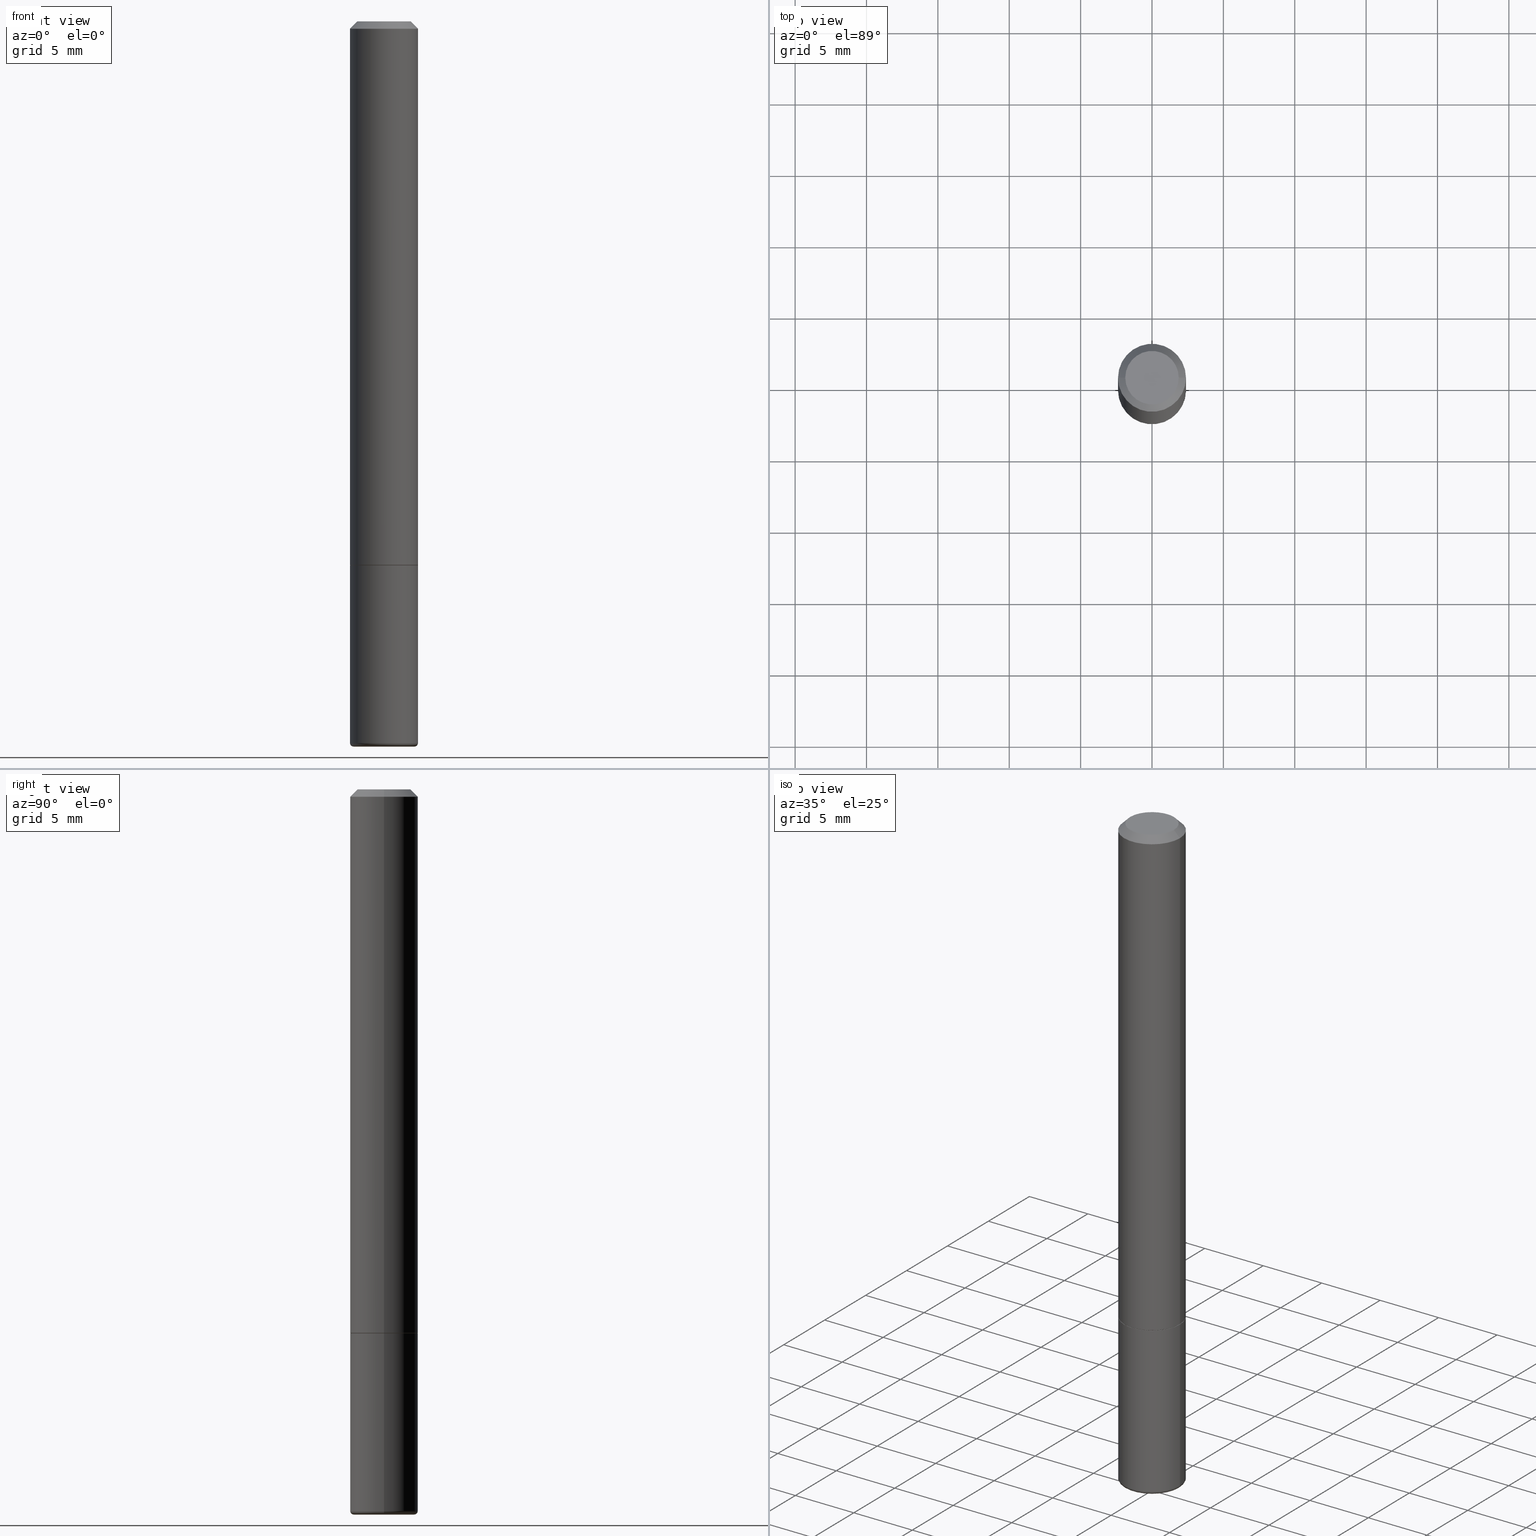
[diagram: canonical four-view strip — front | top / right | iso, engineering-drawing reading convention]
A machine part, canonical four-view strip (front | top / right | iso — engineering-drawing reading convention). The complete STEP part file that produces these views, byte-faithful:
ISO-10303-21;
HEADER;
FILE_DESCRIPTION (( 'STEP AP203' ),
    '1' );
FILE_NAME ('38783.STEP',
    '2024-03-03T12:35:34',
    ( '' ),
    ( '' ),
    'SwSTEP 2.0',
    'SolidWorks 2023',
    '' );
FILE_SCHEMA (( 'CONFIG_CONTROL_DESIGN' ));
ENDSEC;

DATA;
#1 = LENGTH_MEASURE_WITH_UNIT ( LENGTH_MEASURE( 0.02539999999999999897 ), #284 );
#2 = CONICAL_SURFACE ( 'NONE', #324, 0.09274999999999998523, 0.7853981633975251064 ) ;
#3 = ORIENTED_EDGE ( 'NONE', *, *, #60, .F. ) ;
#4 = CARTESIAN_POINT ( 'NONE',  ( -0.09274999999999998523, -4.578193620847224472E-15, -1.499999999999999778 ) ) ;
#5 = CARTESIAN_POINT ( 'NONE',  ( -0.09274999999999998523, -4.572895166499002070E-15, -1.499999999999999778 ) ) ;
#6 = ORIENTED_EDGE ( 'NONE', *, *, #404, .F. ) ;
#7 = FACE_OUTER_BOUND ( 'NONE', #225, .T. ) ;
#8 = ORIENTED_EDGE ( 'NONE', *, *, #279, .T. ) ;
#9 = FACE_OUTER_BOUND ( 'NONE', #157, .T. ) ;
#10 = AXIS2_PLACEMENT_3D ( 'NONE', #332, #296, #15 ) ;
#11 = DIRECTION ( 'NONE',  ( 1.000000000000000000, -6.982962677686262766E-15, 0.000000000000000000 ) ) ;
#12 = EDGE_CURVE ( 'NONE', #29, #66, #264, .T. ) ;
#13 = MANIFOLD_SOLID_BREP ( 'Body-Move/Copy2[1]', #26 ) ;
#14 = DIRECTION ( 'NONE',  ( -1.000000000000000000, 6.982962677686265922E-15, -4.876176775795935793E-29 ) ) ;
#15 = DIRECTION ( 'NONE',  ( 1.000000000000000000, -6.982962677686274599E-15, 0.000000000000000000 ) ) ;
#16 = ADVANCED_FACE ( 'NONE', ( #403 ), #97, .T. ) ;
#17 = ORIENTED_EDGE ( 'NONE', *, *, #369, .F. ) ;
#18 = DIRECTION ( 'NONE',  ( -2.445468806185136597E-29, 3.491481338843145583E-15, 1.000000000000000000 ) ) ;
#19 = EDGE_CURVE ( 'NONE', #102, #131, #335, .T. ) ;
#20 = ORIENTED_EDGE ( 'NONE', *, *, #260, .F. ) ;
#21 = CIRCLE ( 'NONE', #346, 0.09375000000000001388 ) ;
#22 = LINE ( 'NONE', #276, #388 ) ;
#23 = CARTESIAN_POINT ( 'NONE',  ( 0.09374999999999998612, -7.602700615330948598E-15, -1.989999999999999991 ) ) ;
#24 = MECHANICAL_CONTEXT ( 'NONE', #344, 'mechanical' ) ;
#25 = CARTESIAN_POINT ( 'NONE',  ( 0.09375000000000001388, -7.130013140679441850E-16, -0.02000000000000001776 ) ) ;
#26 = CLOSED_SHELL ( 'NONE', ( #88, #182, #82, #52, #16, #140 ) ) ;
#27 = AXIS2_PLACEMENT_3D ( 'NONE', #397, #401, #44 ) ;
#28 = CALENDAR_DATE ( 2024, 3, 3 ) ;
#29 = VERTEX_POINT ( 'NONE', #204 ) ;
#30 = EDGE_LOOP ( 'NONE', ( #68, #195 ) ) ;
#31 =( NAMED_UNIT ( * ) SI_UNIT ( $, .STERADIAN. ) SOLID_ANGLE_UNIT ( ) );
#32 = ORIENTED_EDGE ( 'NONE', *, *, #159, .T. ) ;
#33 = PERSON_AND_ORGANIZATION ( #133, #251 ) ;
#34 = DIRECTION ( 'NONE',  ( 1.000000000000000000, -6.982962677686262766E-15, 0.000000000000000000 ) ) ;
#35 = ORIENTED_EDGE ( 'NONE', *, *, #48, .T. ) ;
#36 = EDGE_CURVE ( 'NONE', #29, #216, #399, .T. ) ;
#37 = CARTESIAN_POINT ( 'NONE',  ( 3.668203209277704335E-29, -5.237222008264717388E-15, -1.499999999999999778 ) ) ;
#38 = ORIENTED_EDGE ( 'NONE', *, *, #12, .T. ) ;
#39 = APPROVAL_STATUS ( 'not_yet_approved' ) ;
#40 = EDGE_CURVE ( 'NONE', #131, #167, #176, .T. ) ;
#41 = CARTESIAN_POINT ( 'NONE',  ( 3.665757740471518732E-29, -5.233730526925875170E-15, -1.498999999999999666 ) ) ;
#42 = DIRECTION ( 'NONE',  ( 1.000000000000000000, -6.982962677686265922E-15, 0.000000000000000000 ) ) ;
#43 = AXIS2_PLACEMENT_3D ( 'NONE', #143, #145, #384 ) ;
#44 = DIRECTION ( 'NONE',  ( 1.000000000000000000, -6.982962677686265922E-15, 4.876176775795935793E-29 ) ) ;
#45 = CARTESIAN_POINT ( 'NONE',  ( 3.668203209277704335E-29, -5.237222008264717388E-15, -1.499999999999999778 ) ) ;
#46 = DIRECTION ( 'NONE',  ( -2.445468806185136597E-29, 3.491481338843145583E-15, 1.000000000000000000 ) ) ;
#47 = AXIS2_PLACEMENT_3D ( 'NONE', #87, #382, #181 ) ;
#48 = EDGE_CURVE ( 'NONE', #290, #316, #407, .T. ) ;
#49 = PLANE ( 'NONE',  #163 ) ;
#50 = DIRECTION ( 'NONE',  ( 1.000000000000000000, -6.982962677686262766E-15, 0.000000000000000000 ) ) ;
#51 = CARTESIAN_POINT ( 'NONE',  ( 3.668203209277704335E-29, -5.237222008264717388E-15, -1.499999999999999778 ) ) ;
#52 = ADVANCED_FACE ( 'NONE', ( #375 ), #76, .T. ) ;
#53 = CARTESIAN_POINT ( 'NONE',  ( 4.890937612370276662E-31, -6.982962677686296539E-17, -0.02000000000000001776 ) ) ;
#54 = ORIENTED_EDGE ( 'NONE', *, *, #369, .T. ) ;
#55 = DIRECTION ( 'NONE',  ( 7.105427357601001859E-15, 1.000000000000000000, -3.491481338843145583E-15 ) ) ;
#56 = FACE_OUTER_BOUND ( 'NONE', #368, .T. ) ;
#57 = ADVANCED_FACE ( 'NONE', ( #396 ), #377, .T. ) ;
#58 = CIRCLE ( 'NONE', #349, 0.09375000000000002776 ) ;
#59 = UNCERTAINTY_MEASURE_WITH_UNIT (LENGTH_MEASURE( 1.000000000000000082E-05 ), #162, 'distance_accuracy_value', 'NONE');
#60 = EDGE_CURVE ( 'NONE', #361, #290, #77, .T. ) ;
#61 = AXIS2_PLACEMENT_3D ( 'NONE', #306, #212, #341 ) ;
#62 = PRODUCT_DEFINITION_FORMATION_WITH_SPECIFIED_SOURCE ( 'ANY', '', #153, .NOT_KNOWN. ) ;
#63 = CARTESIAN_POINT ( 'NONE',  ( -0.09375000000000001388, -5.426501121506194922E-15, -1.499999999999999778 ) ) ;
#64 = EDGE_LOOP ( 'NONE', ( #354, #288, #38, #190 ) ) ;
#65 = CARTESIAN_POINT ( 'NONE',  ( 3.668203209277704335E-29, -5.237222008264717388E-15, -1.499999999999999778 ) ) ;
#66 = VERTEX_POINT ( 'NONE', #173 ) ;
#67 = CC_DESIGN_DATE_AND_TIME_ASSIGNMENT ( #398, #109, ( #408 ) ) ;
#68 = ORIENTED_EDGE ( 'NONE', *, *, #159, .F. ) ;
#69 = CALENDAR_DATE ( 2024, 3, 3 ) ;
#70 = CIRCLE ( 'NONE', #229, 0.09375000000000020817 ) ;
#71 = ORIENTED_EDGE ( 'NONE', *, *, #406, .T. ) ;
#72 = SHAPE_DEFINITION_REPRESENTATION ( #103, #410 ) ;
#73 = ORIENTED_EDGE ( 'NONE', *, *, #138, .T. ) ;
#74 = DIRECTION ( 'NONE',  ( 1.000000000000000000, -6.982962677686265922E-15, 4.876176775795935793E-29 ) ) ;
#75 = PERSON_AND_ORGANIZATION ( #133, #251 ) ;
#76 = CYLINDRICAL_SURFACE ( 'NONE', #365, 0.09375000000000002776 ) ;
#77 = CIRCLE ( 'NONE', #219, 0.08375000000000000500 ) ;
#78 = CIRCLE ( 'NONE', #389, 0.009999999999999944697 ) ;
#79 = CARTESIAN_POINT ( 'NONE',  ( 3.668203209277704335E-29, -5.237222008264717388E-15, -1.499999999999999778 ) ) ;
#80 = EDGE_CURVE ( 'NONE', #282, #131, #70, .T. ) ;
#81 = CARTESIAN_POINT ( 'NONE',  ( 0.000000000000000000, 0.000000000000000000, 0.000000000000000000 ) ) ;
#82 = ADVANCED_FACE ( 'NONE', ( #9 ), #136, .F. ) ;
#83 = FACE_OUTER_BOUND ( 'NONE', #30, .T. ) ;
#84 = CYLINDRICAL_SURFACE ( 'NONE', #43, 0.09375000000000011102 ) ;
#85 = APPROVAL_PERSON_ORGANIZATION ( #75, #385, #258 ) ;
#86 = DIRECTION ( 'NONE',  ( -1.000000000000000000, 6.982962677686265922E-15, 0.000000000000000000 ) ) ;
#87 = CARTESIAN_POINT ( 'NONE',  ( 4.890937612370273194E-29, -6.982962677686291165E-15, -2.000000000000000000 ) ) ;
#88 = ADVANCED_FACE ( 'NONE', ( #297 ), #203, .T. ) ;
#89 = LINE ( 'NONE', #4, #315 ) ;
#90 = CIRCLE ( 'NONE', #111, 0.09375000000000001388 ) ;
#91 = LOCAL_TIME ( 7, 35, 34.00000000000000000, #215 ) ;
#92 = DATE_AND_TIME ( #275, #170 ) ;
#93 = EDGE_CURVE ( 'NONE', #316, #100, #199, .T. ) ;
#94 = PERSON_AND_ORGANIZATION_ROLE ( 'creator' ) ;
#95 = ORIENTED_EDGE ( 'NONE', *, *, #93, .F. ) ;
#96 = ADVANCED_FACE ( 'NONE', ( #171 ), #293, .T. ) ;
#97 = TOROIDAL_SURFACE ( 'NONE', #179, 0.08375000000000000500, 0.009999999999999953371 ) ;
#98 = DATE_TIME_ROLE ( 'creation_date' ) ;
#99 = ORIENTED_EDGE ( 'NONE', *, *, #119, .F. ) ;
#100 = VERTEX_POINT ( 'NONE', #137 ) ;
#101 = APPROVAL_ROLE ( '' ) ;
#102 = VERTEX_POINT ( 'NONE', #261 ) ;
#103 = PRODUCT_DEFINITION_SHAPE ( 'NONE', 'NONE',  #311 ) ;
#104 = VECTOR ( 'NONE', #271, 39.37007874015748143 ) ;
#105 = EDGE_LOOP ( 'NONE', ( #327, #409, #127, #124 ) ) ;
#106 = CARTESIAN_POINT ( 'NONE',  ( 0.000000000000000000, 0.000000000000000000, 0.000000000000000000 ) ) ;
#107 = APPLICATION_CONTEXT ( 'configuration controlled 3d designs of mechanical parts and assemblies' ) ;
#108 = FACE_OUTER_BOUND ( 'NONE', #255, .T. ) ;
#109 = DATE_TIME_ROLE ( 'classification_date' ) ;
#110 = CIRCLE ( 'NONE', #134, 0.09375000000000020817 ) ;
#111 = AXIS2_PLACEMENT_3D ( 'NONE', #53, #303, #360 ) ;
#112 = CC_DESIGN_PERSON_AND_ORGANIZATION_ASSIGNMENT ( #193, #247, ( #311 ) ) ;
#113 = DIRECTION ( 'NONE',  ( -2.445468806185136597E-29, 3.491481338843145583E-15, 1.000000000000000000 ) ) ;
#114 = DIRECTION ( 'NONE',  ( 1.000000000000000000, -6.982962677686265922E-15, 4.876176775795935793E-29 ) ) ;
#115 = ADVANCED_FACE ( 'NONE', ( #108 ), #84, .T. ) ;
#116 = CARTESIAN_POINT ( 'NONE',  ( 5.219257071676098903E-46, -7.451715851902235727E-32, -2.134256245050205639E-17 ) ) ;
#117 = DIRECTION ( 'NONE',  ( 1.000000000000000000, -6.982962677686265922E-15, 4.883557194083112901E-29 ) ) ;
#118 = AXIS2_PLACEMENT_3D ( 'NONE', #37, #289, #415 ) ;
#119 = EDGE_CURVE ( 'NONE', #290, #361, #239, .T. ) ;
#120 = CARTESIAN_POINT ( 'NONE',  ( 4.890937612370273194E-29, -6.982962677686291165E-15, -2.000000000000000000 ) ) ;
#121 = DIRECTION ( 'NONE',  ( -2.445468806185136877E-29, 3.491481338843145188E-15, 1.000000000000000000 ) ) ;
#122 = PLANE ( 'NONE',  #155 ) ;
#123 = PERSON_AND_ORGANIZATION ( #133, #251 ) ;
#124 = ORIENTED_EDGE ( 'NONE', *, *, #12, .F. ) ;
#125 = PERSON_AND_ORGANIZATION ( #133, #251 ) ;
#126 = FACE_OUTER_BOUND ( 'NONE', #105, .T. ) ;
#127 = ORIENTED_EDGE ( 'NONE', *, *, #198, .T. ) ;
#128 = AXIS2_PLACEMENT_3D ( 'NONE', #308, #18, #117 ) ;
#129 = CC_DESIGN_APPROVAL ( #385, ( #408 ) ) ;
#130 = ORIENTED_EDGE ( 'NONE', *, *, #172, .F. ) ;
#131 = VERTEX_POINT ( 'NONE', #183 ) ;
#132 = ORIENTED_EDGE ( 'NONE', *, *, #80, .T. ) ;
#133 = PERSON ( 'UNSPECIFIED', 'UNSPECIFIED', 'UNSPECIFIED', ('UNSPECIFIED'), ('UNSPECIFIED'), ('UNSPECIFIED') ) ;
#134 = AXIS2_PLACEMENT_3D ( 'NONE', #205, #338, #208 ) ;
#135 = EDGE_CURVE ( 'NONE', #216, #167, #150, .T. ) ;
#136 = PLANE ( 'NONE',  #331 ) ;
#137 = CARTESIAN_POINT ( 'NONE',  ( 0.09375000000000001388, -5.891874759297804892E-15, -1.499999999999999778 ) ) ;
#138 = EDGE_CURVE ( 'NONE', #310, #316, #146, .T. ) ;
#139 = DIRECTION ( 'NONE',  ( 1.000000000000000000, -6.982962677686265922E-15, 4.883557194083112901E-29 ) ) ;
#140 = ADVANCED_FACE ( 'NONE', ( #148 ), #122, .T. ) ;
#141 = CARTESIAN_POINT ( 'NONE',  ( 0.09375000000000002776, -6.546527510330876027E-16, 4.571415727308691207E-30 ) ) ;
#142 = DIRECTION ( 'NONE',  ( 0.7071067811866017516, -2.468850131082825040E-15, 0.7071067811864931718 ) ) ;
#143 = CARTESIAN_POINT ( 'NONE',  ( 0.000000000000000000, 0.000000000000000000, 0.000000000000000000 ) ) ;
#144 = APPROVAL ( #412, 'UNSPECIFIED' ) ;
#145 = DIRECTION ( 'NONE',  ( -2.445468806185136597E-29, 3.491481338843145583E-15, 1.000000000000000000 ) ) ;
#146 = CIRCLE ( 'NONE', #270, 0.09375000000000002776 ) ;
#147 = CIRCLE ( 'NONE', #353, 0.09274999999999998523 ) ;
#148 = FACE_OUTER_BOUND ( 'NONE', #165, .T. ) ;
#149 = DIRECTION ( 'NONE',  ( 1.000000000000000000, -6.982962677686270655E-15, 0.000000000000000000 ) ) ;
#150 = LINE ( 'NONE', #411, #104 ) ;
#151 = COORDINATED_UNIVERSAL_TIME_OFFSET ( 5, 0, .BEHIND. ) ;
#152 = CARTESIAN_POINT ( 'NONE',  ( 3.668203209277704335E-29, -5.237222008264717388E-15, -1.499999999999999778 ) ) ;
#153 = PRODUCT ( '38783', '38783', '', ( #24 ) ) ;
#154 = ORIENTED_EDGE ( 'NONE', *, *, #318, .T. ) ;
#155 = AXIS2_PLACEMENT_3D ( 'NONE', #120, #210, #268 ) ;
#156 = DATE_AND_TIME ( #28, #91 ) ;
#157 = EDGE_LOOP ( 'NONE', ( #236, #154 ) ) ;
#158 = DIRECTION ( 'NONE',  ( 1.000000000000000000, 0.000000000000000000, 0.000000000000000000 ) ) ;
#159 = EDGE_CURVE ( 'NONE', #102, #222, #257, .T. ) ;
#160 = ORIENTED_EDGE ( 'NONE', *, *, #60, .T. ) ;
#161 = VECTOR ( 'NONE', #330, 39.37007874015748143 ) ;
#162 =( CONVERSION_BASED_UNIT ( 'INCH', #1 ) LENGTH_UNIT ( ) NAMED_UNIT ( #362 ) );
#163 = AXIS2_PLACEMENT_3D ( 'NONE', #51, #177, #405 ) ;
#164 = CARTESIAN_POINT ( 'NONE',  ( 0.07375000000000006550, -6.094815207017975989E-16, -2.134256245049812442E-17 ) ) ;
#165 = EDGE_LOOP ( 'NONE', ( #99, #3 ) ) ;
#166 = ORIENTED_EDGE ( 'NONE', *, *, #48, .F. ) ;
#167 = VERTEX_POINT ( 'NONE', #25 ) ;
#168 = COORDINATED_UNIVERSAL_TIME_OFFSET ( 5, 0, .BEHIND. ) ;
#169 = AXIS2_PLACEMENT_3D ( 'NONE', #248, #191, #86 ) ;
#170 = LOCAL_TIME ( 7, 35, 34.00000000000000000, #151 ) ;
#171 = FACE_OUTER_BOUND ( 'NONE', #350, .T. ) ;
#172 = EDGE_CURVE ( 'NONE', #282, #66, #22, .T. ) ;
#173 = CARTESIAN_POINT ( 'NONE',  ( -0.09375000000000001388, 5.848231242562245017E-16, -0.02000000000000001776 ) ) ;
#174 = CARTESIAN_POINT ( 'NONE',  ( 0.09274999999999998523, -5.884891796620118089E-15, -1.499999999999999778 ) ) ;
#175 = CIRCLE ( 'NONE', #348, 0.09375000000000001388 ) ;
#176 = LINE ( 'NONE', #298, #187 ) ;
#177 = DIRECTION ( 'NONE',  ( -2.438088387897960049E-29, 3.491481338843145188E-15, 1.000000000000000000 ) ) ;
#178 = DIRECTION ( 'NONE',  ( -2.445468806185136597E-29, 3.491481338843145583E-15, 1.000000000000000000 ) ) ;
#179 = AXIS2_PLACEMENT_3D ( 'NONE', #234, #259, #139 ) ;
#180 = LOCAL_TIME ( 7, 35, 34.00000000000000000, #230 ) ;
#181 = DIRECTION ( 'NONE',  ( 1.000000000000000000, -6.982962677686265922E-15, 0.000000000000000000 ) ) ;
#182 = ADVANCED_FACE ( 'NONE', ( #379 ), #299, .T. ) ;
#183 = CARTESIAN_POINT ( 'NONE',  ( 0.09375000000000020817, -5.888383277958964251E-15, -1.498999999999999666 ) ) ;
#184 = ORIENTED_EDGE ( 'NONE', *, *, #119, .T. ) ;
#185 = PERSON_AND_ORGANIZATION_ROLE ( 'design_owner' ) ;
#186 = CARTESIAN_POINT ( 'NONE',  ( 4.890937612370276662E-31, -6.982962677686296539E-17, -0.02000000000000001776 ) ) ;
#187 = VECTOR ( 'NONE', #266, 39.37007874015748143 ) ;
#188 =( NAMED_UNIT ( * ) PLANE_ANGLE_UNIT ( ) SI_UNIT ( $, .RADIAN. ) );
#189 = PRODUCT_RELATED_PRODUCT_CATEGORY ( 'detail', '', ( #153 ) ) ;
#190 = ORIENTED_EDGE ( 'NONE', *, *, #224, .T. ) ;
#191 = DIRECTION ( 'NONE',  ( 2.445468806185136597E-29, -3.491481338843145583E-15, -1.000000000000000000 ) ) ;
#192 = ORIENTED_EDGE ( 'NONE', *, *, #138, .F. ) ;
#193 = PERSON_AND_ORGANIZATION ( #133, #251 ) ;
#194 = DIRECTION ( 'NONE',  ( 1.000000000000000000, -6.982962677686265922E-15, 0.000000000000000000 ) ) ;
#195 = ORIENTED_EDGE ( 'NONE', *, *, #406, .F. ) ;
#196 = ADVANCED_FACE ( 'NONE', ( #56 ), #242, .F. ) ;
#197 = CARTESIAN_POINT ( 'NONE',  ( 4.890937612370273194E-29, -6.982962677686291165E-15, -2.000000000000000000 ) ) ;
#198 = EDGE_CURVE ( 'NONE', #167, #66, #90, .T. ) ;
#199 = LINE ( 'NONE', #141, #161 ) ;
#200 = CALENDAR_DATE ( 2024, 3, 3 ) ;
#201 = AXIS2_PLACEMENT_3D ( 'NONE', #235, #46, #202 ) ;
#202 = DIRECTION ( 'NONE',  ( 1.000000000000000000, -6.982962677686265922E-15, 4.878439923190939118E-29 ) ) ;
#203 = CYLINDRICAL_SURFACE ( 'NONE', #337, 0.09375000000000002776 ) ;
#204 = CARTESIAN_POINT ( 'NONE',  ( -0.07375000000000006550, 5.499083108677936415E-16, -2.134256245050577883E-17 ) ) ;
#205 = CARTESIAN_POINT ( 'NONE',  ( 3.665757740471518732E-29, -5.233730526925875170E-15, -1.498999999999999666 ) ) ;
#206 = LOCAL_TIME ( 7, 35, 34.00000000000000000, #312 ) ;
#207 = CC_DESIGN_PERSON_AND_ORGANIZATION_ASSIGNMENT ( #125, #185, ( #153 ) ) ;
#208 = DIRECTION ( 'NONE',  ( 1.000000000000000000, -6.982962677686268288E-15, 0.000000000000000000 ) ) ;
#209 = CARTESIAN_POINT ( 'NONE',  ( 3.668203209277704335E-29, -5.237222008264717388E-15, -1.499999999999999778 ) ) ;
#210 = DIRECTION ( 'NONE',  ( 2.438088387897960049E-29, -3.491481338843145188E-15, -1.000000000000000000 ) ) ;
#211 = DIRECTION ( 'NONE',  ( 1.000000000000000000, -6.982962677686261189E-15, 0.000000000000000000 ) ) ;
#212 = DIRECTION ( 'NONE',  ( 2.438088387897960049E-29, -3.491481338843145188E-15, -1.000000000000000000 ) ) ;
#213 = ADVANCED_FACE ( 'NONE', ( #7 ), #2, .T. ) ;
#214 = CONICAL_SURFACE ( 'NONE', #169, 0.09375000000000001388, 0.7853981633974469467 ) ;
#215 = COORDINATED_UNIVERSAL_TIME_OFFSET ( 5, 0, .BEHIND. ) ;
#216 = VERTEX_POINT ( 'NONE', #164 ) ;
#217 = PERSON_AND_ORGANIZATION_ROLE ( 'design_supplier' ) ;
#218 = ORIENTED_EDGE ( 'NONE', *, *, #40, .F. ) ;
#219 = AXIS2_PLACEMENT_3D ( 'NONE', #197, #328, #42 ) ;
#220 =( GEOMETRIC_REPRESENTATION_CONTEXT ( 3 ) GLOBAL_UNCERTAINTY_ASSIGNED_CONTEXT ( ( #59 ) ) GLOBAL_UNIT_ASSIGNED_CONTEXT ( ( #162, #188, #31 ) ) REPRESENTATION_CONTEXT ( 'NONE', 'WORKASPACE' ) );
#221 = PERSON_AND_ORGANIZATION ( #133, #251 ) ;
#222 = VERTEX_POINT ( 'NONE', #5 ) ;
#223 = DIRECTION ( 'NONE',  ( 0.000000000000000000, 0.000000000000000000, 1.000000000000000000 ) ) ;
#224 = EDGE_CURVE ( 'NONE', #66, #167, #175, .T. ) ;
#225 = EDGE_LOOP ( 'NONE', ( #32, #342, #304, #390 ) ) ;
#226 = APPLICATION_PROTOCOL_DEFINITION ( 'international standard', 'config_control_design', 1994, #344 ) ;
#227 = CC_DESIGN_DATE_AND_TIME_ASSIGNMENT ( #92, #98, ( #311 ) ) ;
#228 = ORIENTED_EDGE ( 'NONE', *, *, #356, .T. ) ;
#229 = AXIS2_PLACEMENT_3D ( 'NONE', #41, #292, #374 ) ;
#230 = COORDINATED_UNIVERSAL_TIME_OFFSET ( 5, 0, .BEHIND. ) ;
#231 = EDGE_LOOP ( 'NONE', ( #130, #132, #285, #249 ) ) ;
#232 = CALENDAR_DATE ( 2024, 3, 3 ) ;
#233 = DIRECTION ( 'NONE',  ( -2.445468806185136597E-29, 3.491481338843145583E-15, 1.000000000000000000 ) ) ;
#234 = CARTESIAN_POINT ( 'NONE',  ( 4.866482924308422209E-29, -6.948047864297860305E-15, -1.989999999999999991 ) ) ;
#235 = CARTESIAN_POINT ( 'NONE',  ( 5.219257071676098903E-46, -7.451715851902235727E-32, -2.134256245050205639E-17 ) ) ;
#236 = ORIENTED_EDGE ( 'NONE', *, *, #260, .T. ) ;
#237 = CARTESIAN_POINT ( 'NONE',  ( -0.08375000000000000500, -6.334898593004988035E-15, -2.000000000000000000 ) ) ;
#238 = CC_DESIGN_PERSON_AND_ORGANIZATION_ASSIGNMENT ( #414, #94, ( #62 ) ) ;
#239 = CIRCLE ( 'NONE', #47, 0.08375000000000000500 ) ;
#240 = APPROVAL_PERSON_ORGANIZATION ( #221, #144, #243 ) ;
#241 = ORIENTED_EDGE ( 'NONE', *, *, #394, .T. ) ;
#242 = PLANE ( 'NONE',  #61 ) ;
#243 = APPROVAL_ROLE ( '' ) ;
#244 = ADVANCED_FACE ( 'NONE', ( #326 ), #383, .T. ) ;
#245 = ORIENTED_EDGE ( 'NONE', *, *, #19, .T. ) ;
#246 = CC_DESIGN_PERSON_AND_ORGANIZATION_ASSIGNMENT ( #333, #295, ( #408 ) ) ;
#247 = PERSON_AND_ORGANIZATION_ROLE ( 'creator' ) ;
#248 = CARTESIAN_POINT ( 'NONE',  ( 4.890937612370276662E-31, -6.982962677686296539E-17, -0.02000000000000001776 ) ) ;
#249 = ORIENTED_EDGE ( 'NONE', *, *, #224, .F. ) ;
#250 = AXIS2_PLACEMENT_3D ( 'NONE', #186, #313, #417 ) ;
#251 = ORGANIZATION ( 'UNSPECIFIED', 'UNSPECIFIED', '' ) ;
#252 = VERTEX_POINT ( 'NONE', #63 ) ;
#253 = DIRECTION ( 'NONE',  ( 1.000000000000000000, -6.982962677686262766E-15, 0.000000000000000000 ) ) ;
#254 = EDGE_LOOP ( 'NONE', ( #228, #8, #20, #95 ) ) ;
#255 = EDGE_LOOP ( 'NONE', ( #364, #280, #321, #218 ) ) ;
#256 = VECTOR ( 'NONE', #371, 39.37007874015748143 ) ;
#257 = CIRCLE ( 'NONE', #352, 0.09274999999999998523 ) ;
#258 = APPROVAL_ROLE ( '' ) ;
#259 = DIRECTION ( 'NONE',  ( -2.445468806185136597E-29, 3.491481338843145583E-15, 1.000000000000000000 ) ) ;
#260 = EDGE_CURVE ( 'NONE', #100, #252, #372, .T. ) ;
#261 = CARTESIAN_POINT ( 'NONE',  ( 0.09274999999999998523, -5.884891796620118089E-15, -1.499999999999999778 ) ) ;
#262 = DIRECTION ( 'NONE',  ( 2.438088387897960049E-29, -3.491481338843145188E-15, -1.000000000000000000 ) ) ;
#263 = CIRCLE ( 'NONE', #373, 0.07375000000000006550 ) ;
#264 = LINE ( 'NONE', #300, #256 ) ;
#265 = LINE ( 'NONE', #274, #314 ) ;
#266 = DIRECTION ( 'NONE',  ( -2.445468806185136877E-29, 3.491481338843145188E-15, 1.000000000000000000 ) ) ;
#267 = CARTESIAN_POINT ( 'NONE',  ( -0.09374999999999998612, -6.281914049522767170E-15, -1.989999999999999991 ) ) ;
#268 = DIRECTION ( 'NONE',  ( -1.000000000000000000, 6.982962677686265922E-15, -4.876176775795935793E-29 ) ) ;
#269 = DIRECTION ( 'NONE',  ( -2.445468806185136877E-29, 3.491481338843145188E-15, 1.000000000000000000 ) ) ;
#270 = AXIS2_PLACEMENT_3D ( 'NONE', #309, #345, #339 ) ;
#271 = DIRECTION ( 'NONE',  ( 0.7071067811865465735, -7.319954787623252890E-15, -0.7071067811865484609 ) ) ;
#272 = ADVANCED_FACE ( 'NONE', ( #126 ), #214, .T. ) ;
#273 = MANIFOLD_SOLID_BREP ( 'Body-Move/Copy2[2]', #336 ) ;
#274 = CARTESIAN_POINT ( 'NONE',  ( -0.09375000000000002776, 6.661338147750941215E-16, -4.611501647113975397E-30 ) ) ;
#275 = CALENDAR_DATE ( 2024, 3, 3 ) ;
#276 = CARTESIAN_POINT ( 'NONE',  ( -0.09375000000000011102, 6.661338147750947131E-16, -4.611501647113979600E-30 ) ) ;
#277 = AXIS2_PLACEMENT_3D ( 'NONE', #45, #334, #11 ) ;
#278 = APPROVAL_DATE_TIME ( #156, #144 ) ;
#279 = EDGE_CURVE ( 'NONE', #310, #252, #265, .T. ) ;
#280 = ORIENTED_EDGE ( 'NONE', *, *, #172, .T. ) ;
#281 = APPROVAL_DATE_TIME ( #386, #329 ) ;
#282 = VERTEX_POINT ( 'NONE', #380 ) ;
#283 = EDGE_CURVE ( 'NONE', #131, #282, #110, .T. ) ;
#284 =( LENGTH_UNIT ( ) NAMED_UNIT ( * ) SI_UNIT ( $, .METRE. ) );
#285 = ORIENTED_EDGE ( 'NONE', *, *, #40, .T. ) ;
#286 = CC_DESIGN_PERSON_AND_ORGANIZATION_ASSIGNMENT ( #123, #217, ( #62 ) ) ;
#287 = DIRECTION ( 'NONE',  ( -0.7071067811866017516, 7.493145998870549798E-15, 0.7071067811864931718 ) ) ;
#288 = ORIENTED_EDGE ( 'NONE', *, *, #36, .F. ) ;
#289 = DIRECTION ( 'NONE',  ( -2.445468806185136597E-29, 3.491481338843145583E-15, 1.000000000000000000 ) ) ;
#290 = VERTEX_POINT ( 'NONE', #402 ) ;
#291 = APPROVAL_DATE_TIME ( #367, #385 ) ;
#292 = DIRECTION ( 'NONE',  ( -2.445468806185136597E-29, 3.491481338843145583E-15, 1.000000000000000000 ) ) ;
#293 = CONICAL_SURFACE ( 'NONE', #277, 0.09274999999999998523, 0.7853981633975251064 ) ;
#294 = CC_DESIGN_SECURITY_CLASSIFICATION ( #408, ( #62 ) ) ;
#295 = PERSON_AND_ORGANIZATION_ROLE ( 'classification_officer' ) ;
#296 = DIRECTION ( 'NONE',  ( -6.982962677686266711E-15, -1.000000000000000000, 3.491481338843145583E-15 ) ) ;
#297 = FACE_OUTER_BOUND ( 'NONE', #254, .T. ) ;
#298 = CARTESIAN_POINT ( 'NONE',  ( 0.09375000000000011102, -6.546527510330881944E-16, 4.571415727308695411E-30 ) ) ;
#299 = TOROIDAL_SURFACE ( 'NONE', #128, 0.08375000000000000500, 0.009999999999999953371 ) ;
#300 = CARTESIAN_POINT ( 'NONE',  ( -0.09375000000000001388, 5.848231242562245017E-16, -0.02000000000000001776 ) ) ;
#301 = DIRECTION ( 'NONE',  ( -2.445468806185136597E-29, 3.491481338843145583E-15, 1.000000000000000000 ) ) ;
#302 = DIRECTION ( 'NONE',  ( -2.445468806185136597E-29, 3.491481338843145583E-15, 1.000000000000000000 ) ) ;
#303 = DIRECTION ( 'NONE',  ( -2.445468806185136597E-29, 3.491481338843145583E-15, 1.000000000000000000 ) ) ;
#304 = ORIENTED_EDGE ( 'NONE', *, *, #283, .F. ) ;
#305 = DIRECTION ( 'NONE',  ( 1.000000000000000000, -6.982962677686265922E-15, 4.878439923190939118E-29 ) ) ;
#306 = CARTESIAN_POINT ( 'NONE',  ( 5.149934974793625841E-16, 0.07375000000000006550, -2.681680299649332462E-16 ) ) ;
#307 = CC_DESIGN_APPROVAL ( #144, ( #62 ) ) ;
#308 = CARTESIAN_POINT ( 'NONE',  ( 4.866482924308422209E-29, -6.948047864297860305E-15, -1.989999999999999991 ) ) ;
#309 = CARTESIAN_POINT ( 'NONE',  ( 4.866482924308422209E-29, -6.948047864297860305E-15, -1.989999999999999991 ) ) ;
#310 = VERTEX_POINT ( 'NONE', #267 ) ;
#311 = PRODUCT_DEFINITION ( 'UNKNOWN', '', #62, #381 ) ;
#312 = COORDINATED_UNIVERSAL_TIME_OFFSET ( 5, 0, .BEHIND. ) ;
#313 = DIRECTION ( 'NONE',  ( 2.445468806185136597E-29, -3.491481338843145583E-15, -1.000000000000000000 ) ) ;
#314 = VECTOR ( 'NONE', #269, 39.37007874015748143 ) ;
#315 = VECTOR ( 'NONE', #287, 39.37007874015748854 ) ;
#316 = VERTEX_POINT ( 'NONE', #23 ) ;
#317 = APPLICATION_PROTOCOL_DEFINITION ( 'international standard', 'config_control_design', 1994, #107 ) ;
#318 = EDGE_CURVE ( 'NONE', #252, #100, #21, .T. ) ;
#319 = EDGE_LOOP ( 'NONE', ( #184, #54, #418, #166 ) ) ;
#320 = DIRECTION ( 'NONE',  ( -2.445468806185136597E-29, 3.491481338843145583E-15, 1.000000000000000000 ) ) ;
#321 = ORIENTED_EDGE ( 'NONE', *, *, #198, .F. ) ;
#322 = APPROVAL_STATUS ( 'not_yet_approved' ) ;
#323 = EDGE_LOOP ( 'NONE', ( #358, #73, #387, #391 ) ) ;
#324 = AXIS2_PLACEMENT_3D ( 'NONE', #363, #320, #34 ) ;
#325 = APPROVAL_PERSON_ORGANIZATION ( #33, #329, #101 ) ;
#326 = FACE_OUTER_BOUND ( 'NONE', #64, .T. ) ;
#327 = ORIENTED_EDGE ( 'NONE', *, *, #394, .F. ) ;
#328 = DIRECTION ( 'NONE',  ( -2.445468806185136597E-29, 3.491481338843145583E-15, 1.000000000000000000 ) ) ;
#329 = APPROVAL ( #322, 'UNSPECIFIED' ) ;
#330 = DIRECTION ( 'NONE',  ( -2.445468806185136877E-29, 3.491481338843145188E-15, 1.000000000000000000 ) ) ;
#331 = AXIS2_PLACEMENT_3D ( 'NONE', #79, #262, #14 ) ;
#332 = CARTESIAN_POINT ( 'NONE',  ( 0.08375000000000000500, -7.532870988554085300E-15, -1.989999999999999991 ) ) ;
#333 = PERSON_AND_ORGANIZATION ( #133, #251 ) ;
#334 = DIRECTION ( 'NONE',  ( -2.445468806185136597E-29, 3.491481338843145583E-15, 1.000000000000000000 ) ) ;
#335 = LINE ( 'NONE', #174, #378 ) ;
#336 = CLOSED_SHELL ( 'NONE', ( #213, #115, #272, #244, #57, #96, #370, #196 ) ) ;
#337 = AXIS2_PLACEMENT_3D ( 'NONE', #106, #233, #74 ) ;
#338 = DIRECTION ( 'NONE',  ( -2.445468806185136597E-29, 3.491481338843145583E-15, 1.000000000000000000 ) ) ;
#339 = DIRECTION ( 'NONE',  ( 1.000000000000000000, -6.982962677686270655E-15, 0.000000000000000000 ) ) ;
#340 = CARTESIAN_POINT ( 'NONE',  ( -0.08375000000000000500, -6.352968323098776462E-15, -1.989999999999999991 ) ) ;
#341 = DIRECTION ( 'NONE',  ( -1.000000000000000000, 6.982962677686265922E-15, -4.876176775795935793E-29 ) ) ;
#342 = ORIENTED_EDGE ( 'NONE', *, *, #404, .T. ) ;
#343 = DIRECTION ( 'NONE',  ( -2.445468806185136597E-29, 3.491481338843145583E-15, 1.000000000000000000 ) ) ;
#344 = APPLICATION_CONTEXT ( 'configuration controlled 3d designs of mechanical parts and assemblies' ) ;
#345 = DIRECTION ( 'NONE',  ( -2.445468806185136597E-29, 3.491481338843145583E-15, 1.000000000000000000 ) ) ;
#346 = AXIS2_PLACEMENT_3D ( 'NONE', #209, #343, #211 ) ;
#347 = CARTESIAN_POINT ( 'NONE',  ( 4.866482924308422209E-29, -6.948047864297860305E-15, -1.989999999999999991 ) ) ;
#348 = AXIS2_PLACEMENT_3D ( 'NONE', #357, #392, #194 ) ;
#349 = AXIS2_PLACEMENT_3D ( 'NONE', #347, #178, #149 ) ;
#350 = EDGE_LOOP ( 'NONE', ( #6, #71, #245, #395 ) ) ;
#351 = SECURITY_CLASSIFICATION_LEVEL ( 'unclassified' ) ;
#352 = AXIS2_PLACEMENT_3D ( 'NONE', #152, #301, #50 ) ;
#353 = AXIS2_PLACEMENT_3D ( 'NONE', #65, #359, #253 ) ;
#354 = ORIENTED_EDGE ( 'NONE', *, *, #135, .F. ) ;
#355 = CARTESIAN_POINT ( 'NONE',  ( 0.000000000000000000, 0.000000000000000000, 0.000000000000000000 ) ) ;
#356 = EDGE_CURVE ( 'NONE', #316, #310, #58, .T. ) ;
#357 = CARTESIAN_POINT ( 'NONE',  ( 4.890937612370276662E-31, -6.982962677686296539E-17, -0.02000000000000001776 ) ) ;
#358 = ORIENTED_EDGE ( 'NONE', *, *, #279, .F. ) ;
#359 = DIRECTION ( 'NONE',  ( -2.445468806185136597E-29, 3.491481338843145583E-15, 1.000000000000000000 ) ) ;
#360 = DIRECTION ( 'NONE',  ( 1.000000000000000000, -6.982962677686265922E-15, 0.000000000000000000 ) ) ;
#361 = VERTEX_POINT ( 'NONE', #237 ) ;
#362 = DIMENSIONAL_EXPONENTS ( 1.000000000000000000, 0.000000000000000000, 0.000000000000000000, 0.000000000000000000, 0.000000000000000000, 0.000000000000000000, 0.000000000000000000 ) ;
#363 = CARTESIAN_POINT ( 'NONE',  ( 3.668203209277704335E-29, -5.237222008264717388E-15, -1.499999999999999778 ) ) ;
#364 = ORIENTED_EDGE ( 'NONE', *, *, #283, .T. ) ;
#365 = AXIS2_PLACEMENT_3D ( 'NONE', #81, #113, #114 ) ;
#366 = CC_DESIGN_APPROVAL ( #329, ( #311 ) ) ;
#367 = DATE_AND_TIME ( #200, #180 ) ;
#368 = EDGE_LOOP ( 'NONE', ( #416, #241 ) ) ;
#369 = EDGE_CURVE ( 'NONE', #361, #310, #78, .T. ) ;
#370 = ADVANCED_FACE ( 'NONE', ( #83 ), #49, .F. ) ;
#371 = DIRECTION ( 'NONE',  ( -0.7071067811865465735, 2.468850131082246805E-15, -0.7071067811865484609 ) ) ;
#372 = CIRCLE ( 'NONE', #118, 0.09375000000000001388 ) ;
#373 = AXIS2_PLACEMENT_3D ( 'NONE', #116, #302, #305 ) ;
#374 = DIRECTION ( 'NONE',  ( 1.000000000000000000, -6.982962677686268288E-15, 0.000000000000000000 ) ) ;
#375 = FACE_OUTER_BOUND ( 'NONE', #323, .T. ) ;
#376 = DIRECTION ( 'NONE',  ( -1.000000000000000000, 7.105427357600964782E-15, 0.000000000000000000 ) ) ;
#377 = CYLINDRICAL_SURFACE ( 'NONE', #27, 0.09375000000000011102 ) ;
#378 = VECTOR ( 'NONE', #142, 39.37007874015748854 ) ;
#379 = FACE_OUTER_BOUND ( 'NONE', #319, .T. ) ;
#380 = CARTESIAN_POINT ( 'NONE',  ( -0.09375000000000020817, -1.985646262076270971E-15, -1.498999999999999666 ) ) ;
#381 = DESIGN_CONTEXT ( 'detailed design', #107, 'design' ) ;
#382 = DIRECTION ( 'NONE',  ( -2.445468806185136597E-29, 3.491481338843145583E-15, 1.000000000000000000 ) ) ;
#383 = CONICAL_SURFACE ( 'NONE', #250, 0.09375000000000001388, 0.7853981633974469467 ) ;
#384 = DIRECTION ( 'NONE',  ( 1.000000000000000000, -6.982962677686265922E-15, 4.876176775795935793E-29 ) ) ;
#385 = APPROVAL ( #39, 'UNSPECIFIED' ) ;
#386 = DATE_AND_TIME ( #69, #206 ) ;
#387 = ORIENTED_EDGE ( 'NONE', *, *, #93, .T. ) ;
#388 = VECTOR ( 'NONE', #121, 39.37007874015748143 ) ;
#389 = AXIS2_PLACEMENT_3D ( 'NONE', #340, #55, #376 ) ;
#390 = ORIENTED_EDGE ( 'NONE', *, *, #19, .F. ) ;
#391 = ORIENTED_EDGE ( 'NONE', *, *, #318, .F. ) ;
#392 = DIRECTION ( 'NONE',  ( -2.445468806185136597E-29, 3.491481338843145583E-15, 1.000000000000000000 ) ) ;
#393 = EDGE_LOOP ( 'NONE', ( #17, #160, #35, #192 ) ) ;
#394 = EDGE_CURVE ( 'NONE', #216, #29, #263, .T. ) ;
#395 = ORIENTED_EDGE ( 'NONE', *, *, #80, .F. ) ;
#396 = FACE_OUTER_BOUND ( 'NONE', #231, .T. ) ;
#397 = CARTESIAN_POINT ( 'NONE',  ( 0.000000000000000000, 0.000000000000000000, 0.000000000000000000 ) ) ;
#398 = DATE_AND_TIME ( #232, #413 ) ;
#399 = CIRCLE ( 'NONE', #201, 0.07375000000000006550 ) ;
#400 = AXIS2_PLACEMENT_3D ( 'NONE', #355, #223, #158 ) ;
#401 = DIRECTION ( 'NONE',  ( -2.445468806185136597E-29, 3.491481338843145583E-15, 1.000000000000000000 ) ) ;
#402 = CARTESIAN_POINT ( 'NONE',  ( 0.08375000000000000500, -7.567785801942515371E-15, -2.000000000000000000 ) ) ;
#403 = FACE_OUTER_BOUND ( 'NONE', #393, .T. ) ;
#404 = EDGE_CURVE ( 'NONE', #222, #282, #89, .T. ) ;
#405 = DIRECTION ( 'NONE',  ( 1.000000000000000000, -6.982962677686265922E-15, 4.876176775795935793E-29 ) ) ;
#406 = EDGE_CURVE ( 'NONE', #222, #102, #147, .T. ) ;
#407 = CIRCLE ( 'NONE', #10, 0.009999999999999944697 ) ;
#408 = SECURITY_CLASSIFICATION ( '', '', #351 ) ;
#409 = ORIENTED_EDGE ( 'NONE', *, *, #135, .T. ) ;
#410 = ADVANCED_BREP_SHAPE_REPRESENTATION ( '38783', ( #13, #273, #400 ), #220 ) ;
#411 = CARTESIAN_POINT ( 'NONE',  ( 0.09375000000000001388, -7.130013140679441850E-16, -0.02000000000000001776 ) ) ;
#412 = APPROVAL_STATUS ( 'not_yet_approved' ) ;
#413 = LOCAL_TIME ( 7, 35, 34.00000000000000000, #168 ) ;
#414 = PERSON_AND_ORGANIZATION ( #133, #251 ) ;
#415 = DIRECTION ( 'NONE',  ( 1.000000000000000000, -6.982962677686261189E-15, 0.000000000000000000 ) ) ;
#416 = ORIENTED_EDGE ( 'NONE', *, *, #36, .T. ) ;
#417 = DIRECTION ( 'NONE',  ( -1.000000000000000000, 6.982962677686265922E-15, 0.000000000000000000 ) ) ;
#418 = ORIENTED_EDGE ( 'NONE', *, *, #356, .F. ) ;
ENDSEC;
END-ISO-10303-21;
